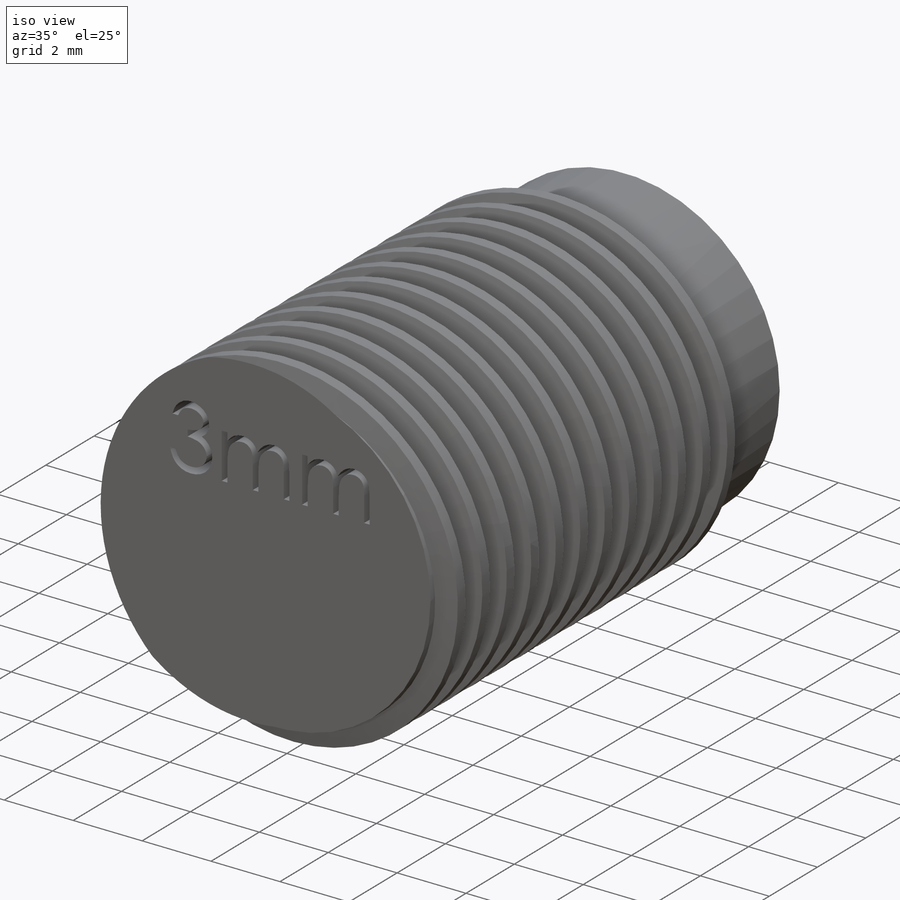
[diagram: iso view]
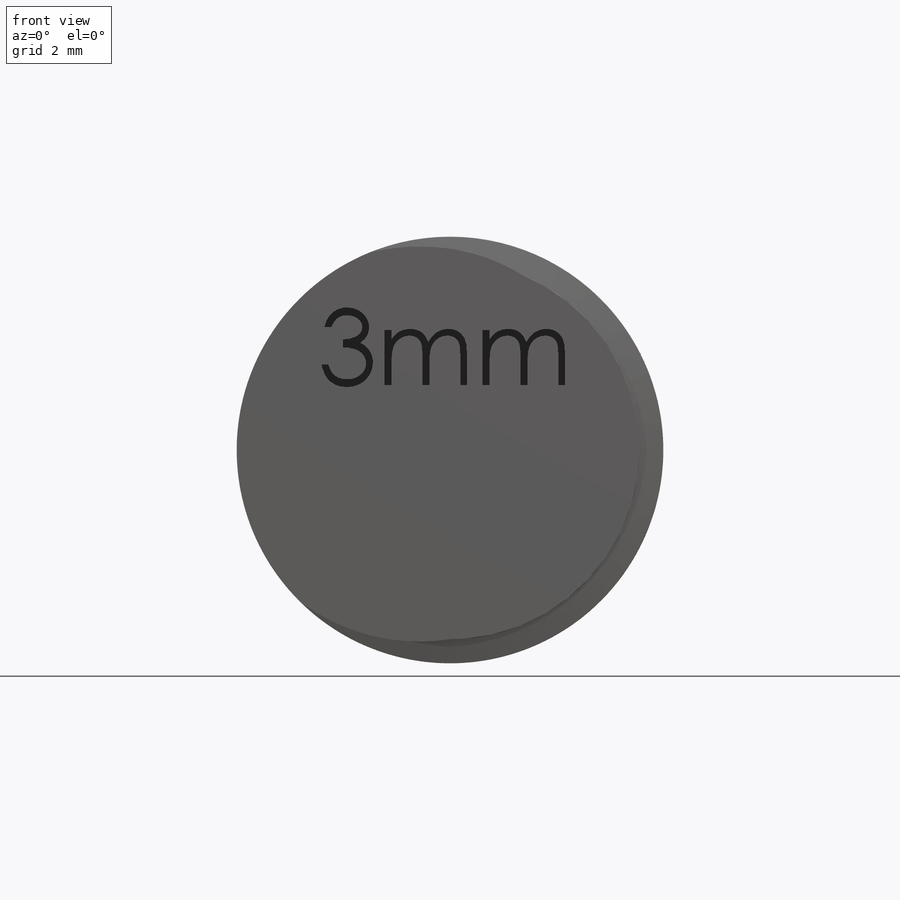
[diagram: front view]
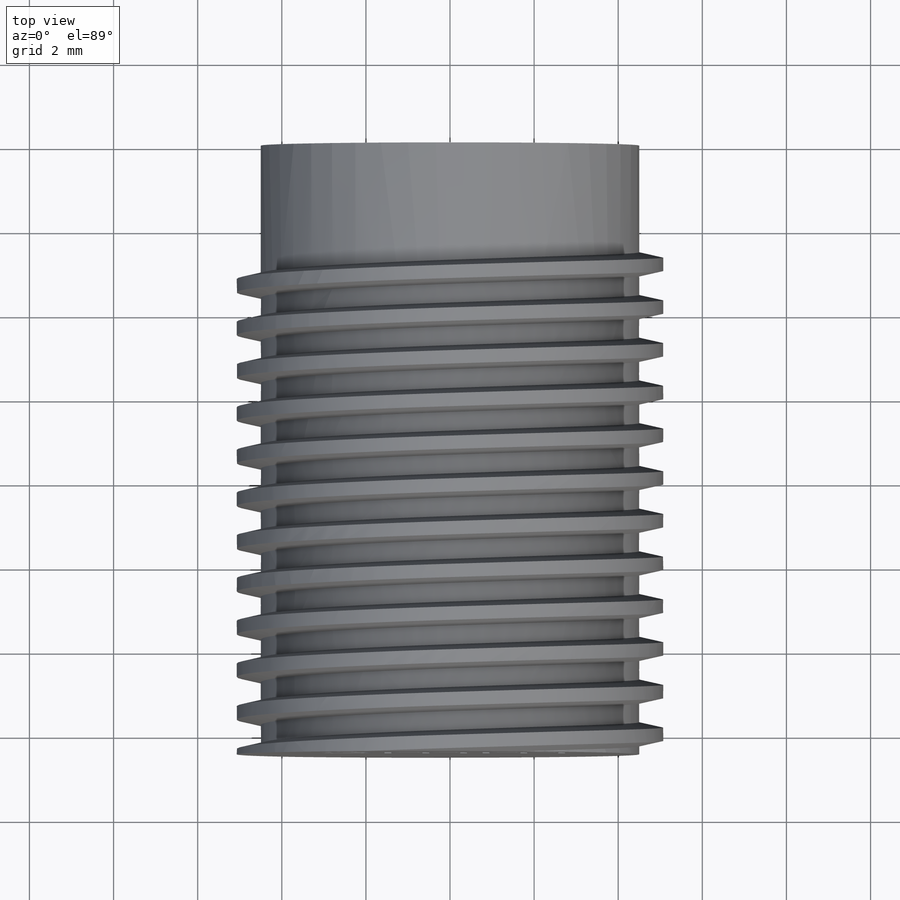
[diagram: top view]
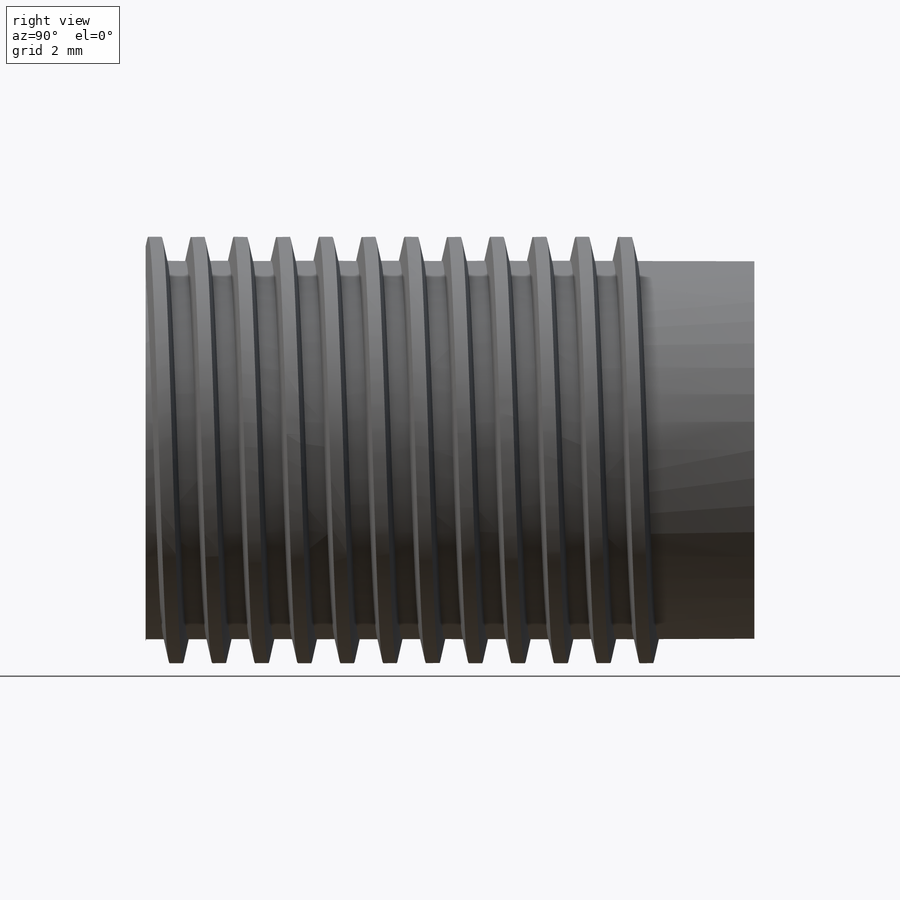
[diagram: right view]
SOLIDWORKS PART (.sldprt)
format: sldprt  version: not decoded by parser v0  size: 843,776 bytes
history: native  units: mm
features: sketch x10, cut_extrude x5, plane x2, material x1, extrude x1, helix x1, sweep x1 (+12 scaffold rows collapsed)
feature tree (33):
  scaffold x12  (default folders/planes/origin — collapsed)
  material  "Material <not specified>"
  sketch  "Sketch1"  dims[D1=9.0mm D2=9.525mm]
  extrude  "Boss-Extrude1"  Depth=16mm
  sketch  "Sketch6"  dims[D1=5.08mm]
  helix  "Helix/Spiral1"  Pitch=14mm
  sketch  "Sketch7"  dims[c1.D1=1.27mm c1.D2=1.27mm c2.D1=0.254mm c2.D2=~0.28121mm c3.D2=60.0deg c3.D3=0.254mm c4.D3=~63.805532deg c5.D3=~0.37642mm c5.D2=~0.293294mm c6.D2=120.0deg c7.D2=~0.283071mm c8.D2=~63.805532deg c9.D2=0.508mm c9.D3=0.635mm c10.D2=0.508mm c10.D1=0.5715mm c11.D2=0.5715mm c11.D3=0.127mm c11.D4=0.127mm c11.D5=~0.585441mm c12.D4=~0.585441mm c12.D3=0.127mm c13.D4=0.127mm c13.D1=0.3175mm c13.D2=0.5715mm c13.D3=~0.15875mm c14.D4=~0.15875mm c14.D5=~0.28575mm]
  sweep  "Sweep2"
  sketch  "Sketch9"  dims[D1=12.7mm]
  cut_extrude  "Cut-Extrude2"  Depth=3.048mm
  sketch  "Sketch12"  dims[D1=6.35mm D2=2.525mm]
  sketch  "Sketch21"  dims[D1=3.0mm D2=1.16mm]
  cut_extrude  "Cut-Extrude14"  Depth=7.5mm
  sketch  "Sketch22"
  plane  "Plane1"
  plane  "Plane2"
  sketch  "Sketch23"  dims[D1=2.527mm D2=1.4mm]
  cut_extrude  "Cut-Extrude15"  Depth=4.5mm
  sketch  "Sketch24"
  cut_extrude  "Cut-Extrude16"  Depth=1.5mm
  sketch  "Sketch25"
  cut_extrude  "Cut-Extrude17"  Depth=1.5mm
decode coverage: 14 of 18 modeling features carry decoded parameters
note: ~ marks probable driven/reference dimensions
note: suppression state not decoded; provenance and decode notes live in map.json
